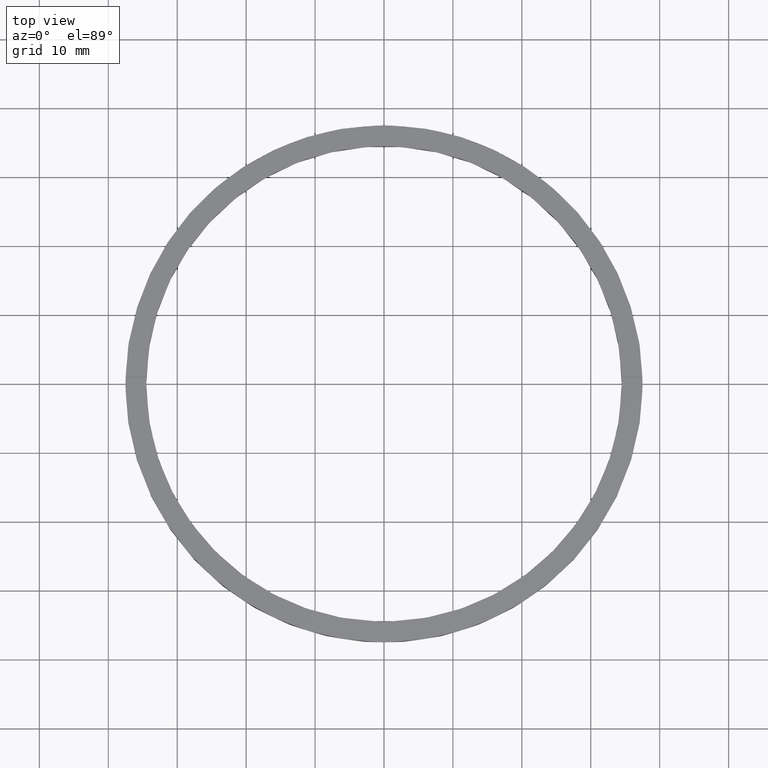
[diagram: clean part render]
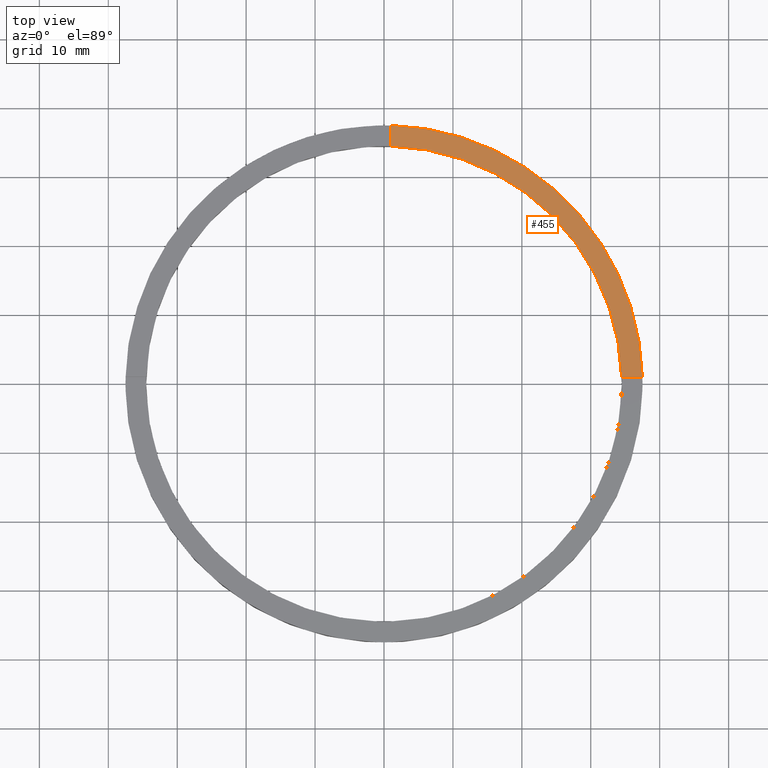
[diagram: same view with one face highlighted and labeled with its STEP entity id]
A machine part, top view. The second image highlights one B-rep face of the part: STEP entity #455.
In plain terms, the highlighted planar face has unit normal (0, 0, 1).
Its self-contained STEP definition (entity closure, byte-faithful):
#11 = FACE_OUTER_BOUND ( 'NONE', #151, .T. ) ;
#29 = CARTESIAN_POINT ( 'NONE',  ( 37.48666429545313150, 0.9999999999998425704, 3.500000000000000000 ) ) ;
#37 = CARTESIAN_POINT ( 'NONE',  ( 34.48550420104076153, 0.9999999999998423483, 3.500000000000000000 ) ) ;
#39 = VECTOR ( 'NONE', #557, 1000.000000000000000 ) ;
#57 = VECTOR ( 'NONE', #508, 1000.000000000000000 ) ;
#80 = DIRECTION ( 'NONE',  ( 1.000000000000000000, 0.000000000000000000, -0.000000000000000000 ) ) ;
#114 = ORIENTED_EDGE ( 'NONE', *, *, #260, .F. ) ;
#151 = EDGE_LOOP ( 'NONE', ( #226, #114, #614, #479 ) ) ;
#209 = AXIS2_PLACEMENT_3D ( 'NONE', #633, #230, #80 ) ;
#226 = ORIENTED_EDGE ( 'NONE', *, *, #528, .F. ) ;
#230 = DIRECTION ( 'NONE',  ( 0.000000000000000000, 0.000000000000000000, 1.000000000000000000 ) ) ;
#238 = CARTESIAN_POINT ( 'NONE',  ( 0.9999999999999746869, 34.48550420104076153, 3.500000000000000000 ) ) ;
#249 = CARTESIAN_POINT ( 'NONE',  ( 0.000000000000000000, 0.000000000000000000, 3.500000000000000000 ) ) ;
#258 = CARTESIAN_POINT ( 'NONE',  ( 0.9999999999999746869, 27.50000000000000355, 3.500000000000000000 ) ) ;
#260 = EDGE_CURVE ( 'NONE', #370, #467, #432, .T. ) ;
#305 = DIRECTION ( 'NONE',  ( 0.000000000000000000, 0.000000000000000000, 1.000000000000000000 ) ) ;
#311 = DIRECTION ( 'NONE',  ( 0.000000000000000000, 0.000000000000000000, 1.000000000000000000 ) ) ;
#313 = CARTESIAN_POINT ( 'NONE',  ( 27.49999999999999645, 0.9999999999998419042, 3.500000000000000000 ) ) ;
#359 = DIRECTION ( 'NONE',  ( 1.000000000000000000, 0.000000000000000000, 0.000000000000000000 ) ) ;
#370 = VERTEX_POINT ( 'NONE', #37 ) ;
#403 = VERTEX_POINT ( 'NONE', #599 ) ;
#432 = CIRCLE ( 'NONE', #449, 34.49999999999999289 ) ;
#449 = AXIS2_PLACEMENT_3D ( 'NONE', #249, #305, #359 ) ;
#455 = ADVANCED_FACE ( 'NONE', ( #11 ), #558, .T. ) ;
#462 = VERTEX_POINT ( 'NONE', #29 ) ;
#467 = VERTEX_POINT ( 'NONE', #238 ) ;
#478 = EDGE_CURVE ( 'NONE', #462, #403, #527, .T. ) ;
#479 = ORIENTED_EDGE ( 'NONE', *, *, #478, .T. ) ;
#484 = CARTESIAN_POINT ( 'NONE',  ( 0.000000000000000000, 0.000000000000000000, 3.500000000000000000 ) ) ;
#508 = DIRECTION ( 'NONE',  ( -1.000000000000000000, -6.505213034913025371E-17, -0.000000000000000000 ) ) ;
#527 = CIRCLE ( 'NONE', #610, 37.50000000000000711 ) ;
#528 = EDGE_CURVE ( 'NONE', #467, #403, #544, .T. ) ;
#544 = LINE ( 'NONE', #258, #39 ) ;
#557 = DIRECTION ( 'NONE',  ( 0.000000000000000000, 1.000000000000000000, 0.000000000000000000 ) ) ;
#558 = PLANE ( 'NONE',  #209 ) ;
#584 = LINE ( 'NONE', #313, #57 ) ;
#599 = CARTESIAN_POINT ( 'NONE',  ( 0.9999999999999746869, 37.48666429545313150, 3.500000000000000000 ) ) ;
#600 = DIRECTION ( 'NONE',  ( 1.000000000000000000, 0.000000000000000000, 0.000000000000000000 ) ) ;
#610 = AXIS2_PLACEMENT_3D ( 'NONE', #484, #311, #600 ) ;
#614 = ORIENTED_EDGE ( 'NONE', *, *, #654, .F. ) ;
#633 = CARTESIAN_POINT ( 'NONE',  ( 0.000000000000000000, 0.000000000000000000, 3.500000000000000000 ) ) ;
#654 = EDGE_CURVE ( 'NONE', #462, #370, #584, .T. ) ;